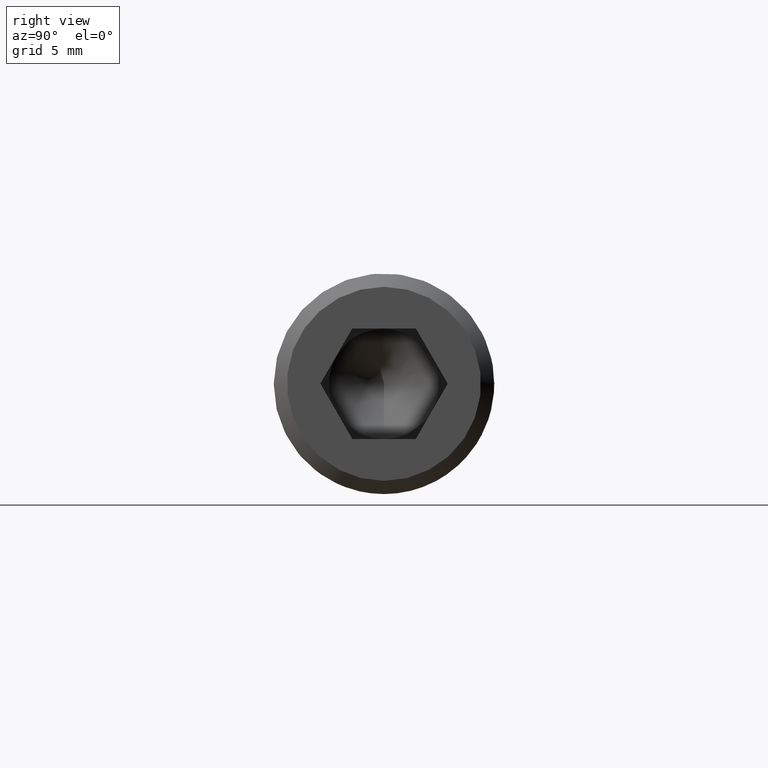
[diagram: clean part render]
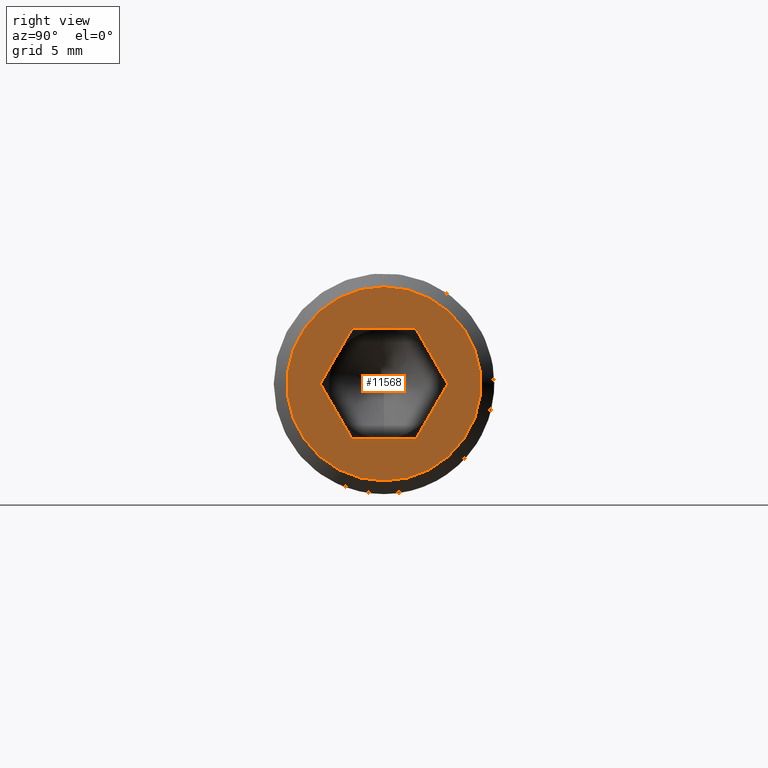
[diagram: same view with one face highlighted and labeled with its STEP entity id]
A machine part, right view. The second image highlights one B-rep face of the part: STEP entity #11568.
In plain terms, the highlighted planar face has unit normal (1, 0, 0).
Its self-contained STEP definition (entity closure, byte-faithful):
#111 = VERTEX_POINT ( 'NONE', #3997 ) ;
#302 = VECTOR ( 'NONE', #1432, 1000.000000000000100 ) ;
#371 = DIRECTION ( 'NONE',  ( 1.000000000000000000, 0.0000000000000000000, 0.0000000000000000000 ) ) ;
#438 = VERTEX_POINT ( 'NONE', #1055 ) ;
#645 = DIRECTION ( 'NONE',  ( 0.0000000000000000000, -1.000000000000000000, 0.0000000000000000000 ) ) ;
#650 = CARTESIAN_POINT ( 'NONE',  ( 30.00000000000000000, -1.443375672974070800, -2.499999999999999100 ) ) ;
#738 = LINE ( 'NONE', #4689, #14466 ) ;
#962 = ORIENTED_EDGE ( 'NONE', *, *, #17029, .F. ) ;
#1055 = CARTESIAN_POINT ( 'NONE',  ( 30.00000000000000000, -1.443375672974070800, -2.499999999999999100 ) ) ;
#1318 = ORIENTED_EDGE ( 'NONE', *, *, #13256, .F. ) ;
#1432 = DIRECTION ( 'NONE',  ( 0.0000000000000000000, -0.4999999999999997800, 0.8660254037844387100 ) ) ;
#1838 = ORIENTED_EDGE ( 'NONE', *, *, #17522, .F. ) ;
#2251 = CARTESIAN_POINT ( 'NONE',  ( 30.00000000000000000, -1.443375672974068500, 2.500000000000000400 ) ) ;
#2940 = ORIENTED_EDGE ( 'NONE', *, *, #12643, .T. ) ;
#3074 = EDGE_CURVE ( 'NONE', #17558, #111, #15514, .T. ) ;
#3135 = VERTEX_POINT ( 'NONE', #13331 ) ;
#3321 = CARTESIAN_POINT ( 'NONE',  ( 30.00000000000000000, 1.443375672974060800, 2.500000000000000400 ) ) ;
#3997 = CARTESIAN_POINT ( 'NONE',  ( 30.00000000000000000, -2.886751345948133500, -2.168404344971008900E-016 ) ) ;
#4287 = PLANE ( 'NONE',  #9304 ) ;
#4373 = CARTESIAN_POINT ( 'NONE',  ( 30.00000000000000000, 0.0000000000000000000, 0.0000000000000000000 ) ) ;
#4689 = CARTESIAN_POINT ( 'NONE',  ( 30.00000000000000000, 1.443375672974062100, -2.499999999999999600 ) ) ;
#5550 = CARTESIAN_POINT ( 'NONE',  ( 30.00000000000000000, 2.886751345948125100, -6.345340530042170500E-016 ) ) ;
#5986 = DIRECTION ( 'NONE',  ( 0.0000000000000000000, 1.000000000000000000, -1.502314598737157300E-016 ) ) ;
#6141 = DIRECTION ( 'NONE',  ( 0.0000000000000000000, 0.4999999999999997200, 0.8660254037844388200 ) ) ;
#6234 = LINE ( 'NONE', #3321, #16907 ) ;
#6763 = DIRECTION ( 'NONE',  ( 0.0000000000000000000, 0.4999999999999997200, -0.8660254037844388200 ) ) ;
#6837 = DIRECTION ( 'NONE',  ( 1.000000000000000000, 0.0000000000000000000, 0.0000000000000000000 ) ) ;
#7173 = CARTESIAN_POINT ( 'NONE',  ( 30.00000000000000000, 1.443375672974060800, 2.500000000000000400 ) ) ;
#7483 = VERTEX_POINT ( 'NONE', #7173 ) ;
#7489 = LINE ( 'NONE', #5550, #302 ) ;
#7591 = CARTESIAN_POINT ( 'NONE',  ( 30.00000000000000000, 0.0000000000000000000, -4.399999999999999500 ) ) ;
#7898 = CARTESIAN_POINT ( 'NONE',  ( 30.00000000000000000, -1.443375672974068500, 2.500000000000000400 ) ) ;
#8226 = DIRECTION ( 'NONE',  ( 0.0000000000000000000, 0.0000000000000000000, -1.000000000000000000 ) ) ;
#8542 = VECTOR ( 'NONE', #17659, 1000.000000000000200 ) ;
#8757 = VERTEX_POINT ( 'NONE', #7591 ) ;
#9304 = AXIS2_PLACEMENT_3D ( 'NONE', #12378, #6837, #8226 ) ;
#9849 = VECTOR ( 'NONE', #5986, 1000.000000000000000 ) ;
#9991 = EDGE_LOOP ( 'NONE', ( #10473, #1318, #13491, #1838, #962, #11204 ) ) ;
#10122 = VERTEX_POINT ( 'NONE', #14086 ) ;
#10473 = ORIENTED_EDGE ( 'NONE', *, *, #3074, .F. ) ;
#11204 = ORIENTED_EDGE ( 'NONE', *, *, #15667, .F. ) ;
#11518 = EDGE_CURVE ( 'NONE', #10122, #7483, #7489, .T. ) ;
#11568 = ADVANCED_FACE ( 'NONE', ( #15714, #16647 ), #4287, .T. ) ;
#12313 = CARTESIAN_POINT ( 'NONE',  ( 30.00000000000000000, -2.886751345948133500, -4.766870681724039000E-018 ) ) ;
#12378 = CARTESIAN_POINT ( 'NONE',  ( 30.00000000000000000, 0.0000000000000000000, 0.0000000000000000000 ) ) ;
#12643 = EDGE_CURVE ( 'NONE', #8757, #8757, #18010, .T. ) ;
#12880 = DIRECTION ( 'NONE',  ( 0.0000000000000000000, 0.0000000000000000000, -1.000000000000000000 ) ) ;
#12953 = VECTOR ( 'NONE', #6763, 1000.000000000000000 ) ;
#13256 = EDGE_CURVE ( 'NONE', #7483, #17558, #6234, .T. ) ;
#13331 = CARTESIAN_POINT ( 'NONE',  ( 30.00000000000000000, 1.443375672974062100, -2.499999999999999600 ) ) ;
#13491 = ORIENTED_EDGE ( 'NONE', *, *, #11518, .F. ) ;
#14086 = CARTESIAN_POINT ( 'NONE',  ( 30.00000000000000000, 2.886751345948125100, -6.345340530042170500E-016 ) ) ;
#14229 = EDGE_LOOP ( 'NONE', ( #2940 ) ) ;
#14466 = VECTOR ( 'NONE', #6141, 1000.000000000000000 ) ;
#14578 = AXIS2_PLACEMENT_3D ( 'NONE', #4373, #371, #12880 ) ;
#14897 = LINE ( 'NONE', #650, #9849 ) ;
#15514 = LINE ( 'NONE', #7898, #8542 ) ;
#15667 = EDGE_CURVE ( 'NONE', #111, #438, #16646, .T. ) ;
#15714 = FACE_BOUND ( 'NONE', #9991, .T. ) ;
#16646 = LINE ( 'NONE', #12313, #12953 ) ;
#16647 = FACE_OUTER_BOUND ( 'NONE', #14229, .T. ) ;
#16907 = VECTOR ( 'NONE', #645, 1000.000000000000000 ) ;
#17029 = EDGE_CURVE ( 'NONE', #438, #3135, #14897, .T. ) ;
#17522 = EDGE_CURVE ( 'NONE', #3135, #10122, #738, .T. ) ;
#17558 = VERTEX_POINT ( 'NONE', #2251 ) ;
#17659 = DIRECTION ( 'NONE',  ( 0.0000000000000000000, -0.5000000000000001100, -0.8660254037844384900 ) ) ;
#18010 = CIRCLE ( 'NONE', #14578, 4.399999999999999500 ) ;